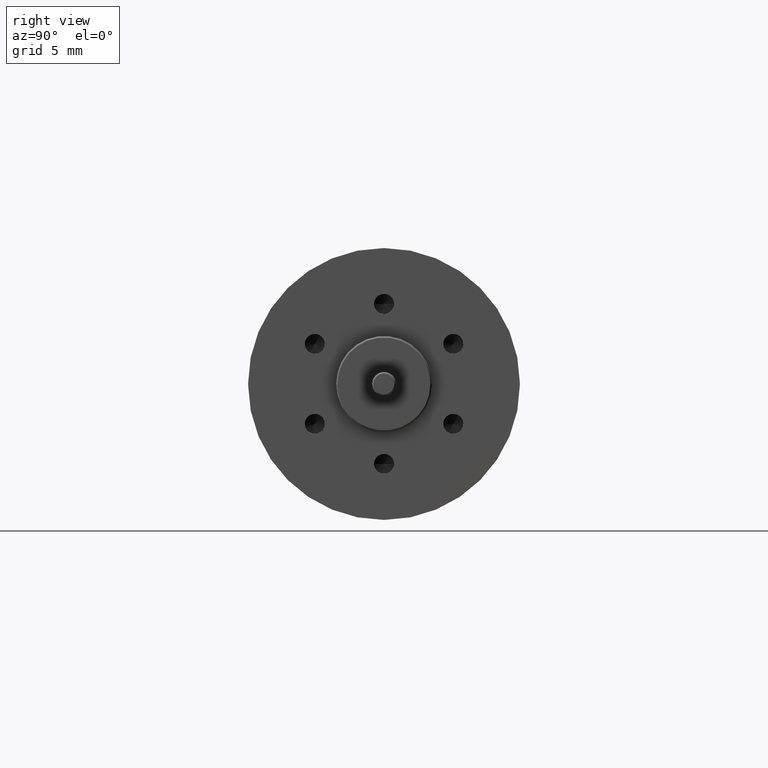
[diagram: clean part render]
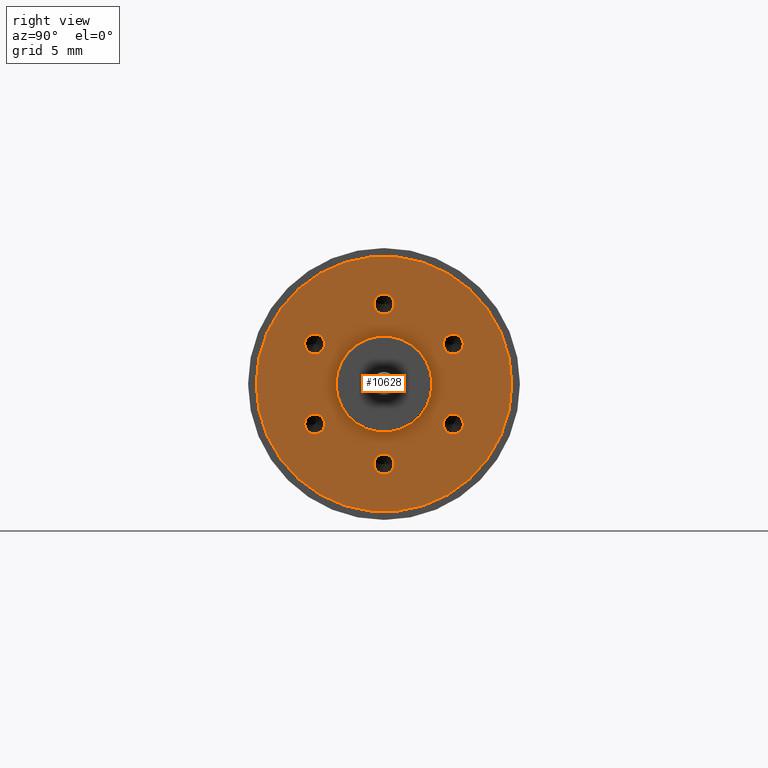
[diagram: same view with one face highlighted and labeled with its STEP entity id]
A machine part, right view. The second image highlights one B-rep face of the part: STEP entity #10628.
In plain terms, the highlighted planar face has unit normal (-1, 0, 0).
Its self-contained STEP definition (entity closure, byte-faithful):
#3560=CARTESIAN_POINT('',(0.E0,0.E0,0.E0));
#3561=DIRECTION('',(-1.E0,0.E0,0.E0));
#3562=DIRECTION('',(0.E0,1.E0,0.E0));
#3563=AXIS2_PLACEMENT_3D('',#3560,#3561,#3562);
#3569=CARTESIAN_POINT('',(0.E0,0.E0,0.E0));
#3570=DIRECTION('',(1.E0,0.E0,0.E0));
#3571=DIRECTION('',(0.E0,1.E0,0.E0));
#3572=AXIS2_PLACEMENT_3D('',#3569,#3570,#3571);
#3578=CARTESIAN_POINT('',(0.E0,0.E0,0.E0));
#3579=DIRECTION('',(-1.E0,0.E0,0.E0));
#3580=DIRECTION('',(0.E0,1.E0,0.E0));
#3581=AXIS2_PLACEMENT_3D('',#3578,#3579,#3580);
#3583=CARTESIAN_POINT('',(0.E0,0.E0,0.E0));
#3584=DIRECTION('',(1.E0,0.E0,0.E0));
#3585=DIRECTION('',(0.E0,1.E0,0.E0));
#3586=AXIS2_PLACEMENT_3D('',#3583,#3584,#3585);
#3588=CARTESIAN_POINT('',(0.E0,0.E0,5.E0));
#3589=DIRECTION('',(1.E0,0.E0,0.E0));
#3590=DIRECTION('',(0.E0,-1.E0,0.E0));
#3591=AXIS2_PLACEMENT_3D('',#3588,#3589,#3590);
#3593=CARTESIAN_POINT('',(0.E0,0.E0,5.E0));
#3594=DIRECTION('',(1.E0,0.E0,0.E0));
#3595=DIRECTION('',(0.E0,1.E0,0.E0));
#3596=AXIS2_PLACEMENT_3D('',#3593,#3594,#3595);
#3598=CARTESIAN_POINT('',(0.E0,4.330127018922E0,2.5E0));
#3599=DIRECTION('',(1.E0,0.E0,0.E0));
#3600=DIRECTION('',(0.E0,-5.E-1,8.660254037844E-1));
#3601=AXIS2_PLACEMENT_3D('',#3598,#3599,#3600);
#3603=CARTESIAN_POINT('',(0.E0,4.330127018922E0,2.5E0));
#3604=DIRECTION('',(1.E0,0.E0,0.E0));
#3605=DIRECTION('',(0.E0,5.E-1,-8.660254037844E-1));
#3606=AXIS2_PLACEMENT_3D('',#3603,#3604,#3605);
#3608=CARTESIAN_POINT('',(0.E0,4.330127018922E0,-2.5E0));
#3609=DIRECTION('',(1.E0,0.E0,0.E0));
#3610=DIRECTION('',(0.E0,5.E-1,8.660254037844E-1));
#3611=AXIS2_PLACEMENT_3D('',#3608,#3609,#3610);
#3613=CARTESIAN_POINT('',(0.E0,4.330127018922E0,-2.5E0));
#3614=DIRECTION('',(1.E0,0.E0,0.E0));
#3615=DIRECTION('',(0.E0,-5.E-1,-8.660254037844E-1));
#3616=AXIS2_PLACEMENT_3D('',#3613,#3614,#3615);
#3618=CARTESIAN_POINT('',(0.E0,0.E0,-5.E0));
#3619=DIRECTION('',(1.E0,0.E0,0.E0));
#3620=DIRECTION('',(0.E0,1.E0,0.E0));
#3621=AXIS2_PLACEMENT_3D('',#3618,#3619,#3620);
#3623=CARTESIAN_POINT('',(0.E0,0.E0,-5.E0));
#3624=DIRECTION('',(1.E0,0.E0,0.E0));
#3625=DIRECTION('',(0.E0,-1.E0,0.E0));
#3626=AXIS2_PLACEMENT_3D('',#3623,#3624,#3625);
#3628=CARTESIAN_POINT('',(0.E0,-4.330127018922E0,-2.5E0));
#3629=DIRECTION('',(1.E0,0.E0,0.E0));
#3630=DIRECTION('',(0.E0,5.E-1,-8.660254037844E-1));
#3631=AXIS2_PLACEMENT_3D('',#3628,#3629,#3630);
#3633=CARTESIAN_POINT('',(0.E0,-4.330127018922E0,-2.5E0));
#3634=DIRECTION('',(1.E0,0.E0,0.E0));
#3635=DIRECTION('',(0.E0,-5.E-1,8.660254037844E-1));
#3636=AXIS2_PLACEMENT_3D('',#3633,#3634,#3635);
#3638=CARTESIAN_POINT('',(0.E0,-4.330127018922E0,2.5E0));
#3639=DIRECTION('',(1.E0,0.E0,0.E0));
#3640=DIRECTION('',(0.E0,-5.E-1,-8.660254037844E-1));
#3641=AXIS2_PLACEMENT_3D('',#3638,#3639,#3640);
#3643=CARTESIAN_POINT('',(0.E0,-4.330127018922E0,2.5E0));
#3644=DIRECTION('',(1.E0,0.E0,0.E0));
#3645=DIRECTION('',(0.E0,5.E-1,8.660254037844E-1));
#3646=AXIS2_PLACEMENT_3D('',#3643,#3644,#3645);
#5356=CARTESIAN_POINT('',(0.E0,7.9925E0,0.E0));
#5358=VERTEX_POINT('',#5356);
#5360=CARTESIAN_POINT('',(0.E0,-7.9925E0,0.E0));
#5362=VERTEX_POINT('',#5360);
#5376=CARTESIAN_POINT('',(0.E0,3.E0,0.E0));
#5377=CARTESIAN_POINT('',(0.E0,-3.E0,0.E0));
#5378=VERTEX_POINT('',#5376);
#5379=VERTEX_POINT('',#5377);
#5386=CARTESIAN_POINT('',(0.E0,-6.25E-1,5.E0));
#5387=CARTESIAN_POINT('',(0.E0,6.25E-1,5.E0));
#5388=VERTEX_POINT('',#5386);
#5389=VERTEX_POINT('',#5387);
#5396=CARTESIAN_POINT('',(0.E0,4.017627018922E0,3.041265877365E0));
#5397=CARTESIAN_POINT('',(0.E0,4.642627018922E0,1.958734122635E0));
#5398=VERTEX_POINT('',#5396);
#5399=VERTEX_POINT('',#5397);
#5406=CARTESIAN_POINT('',(0.E0,4.642627018922E0,-1.958734122635E0));
#5407=CARTESIAN_POINT('',(0.E0,4.017627018922E0,-3.041265877365E0));
#5408=VERTEX_POINT('',#5406);
#5409=VERTEX_POINT('',#5407);
#5416=CARTESIAN_POINT('',(0.E0,6.25E-1,-5.E0));
#5417=CARTESIAN_POINT('',(0.E0,-6.25E-1,-5.E0));
#5418=VERTEX_POINT('',#5416);
#5419=VERTEX_POINT('',#5417);
#5426=CARTESIAN_POINT('',(0.E0,-4.017627018922E0,-3.041265877365E0));
#5427=CARTESIAN_POINT('',(0.E0,-4.642627018922E0,-1.958734122635E0));
#5428=VERTEX_POINT('',#5426);
#5429=VERTEX_POINT('',#5427);
#5436=CARTESIAN_POINT('',(0.E0,-4.642627018922E0,1.958734122635E0));
#5437=CARTESIAN_POINT('',(0.E0,-4.017627018922E0,3.041265877365E0));
#5438=VERTEX_POINT('',#5436);
#5439=VERTEX_POINT('',#5437);
#10577=CARTESIAN_POINT('',(0.E0,0.E0,0.E0));
#10578=DIRECTION('',(-1.E0,0.E0,0.E0));
#10579=DIRECTION('',(0.E0,1.E0,0.E0));
#10580=AXIS2_PLACEMENT_3D('',#10577,#10578,#10579);
#10581=PLANE('',#10580);
#10582=ORIENTED_EDGE('',*,*,#10570,.F.);
#10583=ORIENTED_EDGE('',*,*,#10559,.T.);
#10584=EDGE_LOOP('',(#10582,#10583));
#10585=FACE_OUTER_BOUND('',#10584,.F.);
#10587=ORIENTED_EDGE('',*,*,#10586,.F.);
#10589=ORIENTED_EDGE('',*,*,#10588,.T.);
#10590=EDGE_LOOP('',(#10587,#10589));
#10591=FACE_BOUND('',#10590,.F.);
#10593=ORIENTED_EDGE('',*,*,#10592,.T.);
#10595=ORIENTED_EDGE('',*,*,#10594,.T.);
#10596=EDGE_LOOP('',(#10593,#10595));
#10597=FACE_BOUND('',#10596,.F.);
#10599=ORIENTED_EDGE('',*,*,#10598,.T.);
#10601=ORIENTED_EDGE('',*,*,#10600,.T.);
#10602=EDGE_LOOP('',(#10599,#10601));
#10603=FACE_BOUND('',#10602,.F.);
#10605=ORIENTED_EDGE('',*,*,#10604,.T.);
#10607=ORIENTED_EDGE('',*,*,#10606,.T.);
#10608=EDGE_LOOP('',(#10605,#10607));
#10609=FACE_BOUND('',#10608,.F.);
#10611=ORIENTED_EDGE('',*,*,#10610,.T.);
#10613=ORIENTED_EDGE('',*,*,#10612,.T.);
#10614=EDGE_LOOP('',(#10611,#10613));
#10615=FACE_BOUND('',#10614,.F.);
#10617=ORIENTED_EDGE('',*,*,#10616,.T.);
#10619=ORIENTED_EDGE('',*,*,#10618,.T.);
#10620=EDGE_LOOP('',(#10617,#10619));
#10621=FACE_BOUND('',#10620,.F.);
#10623=ORIENTED_EDGE('',*,*,#10622,.T.);
#10625=ORIENTED_EDGE('',*,*,#10624,.T.);
#10626=EDGE_LOOP('',(#10623,#10625));
#10627=FACE_BOUND('',#10626,.F.);
#10628=ADVANCED_FACE('',(#10585,#10591,#10597,#10603,#10609,#10615,#10621,
#10627),#10581,.F.);
#3564=CIRCLE('',#3563,7.9925E0);
#3573=CIRCLE('',#3572,7.9925E0);
#3582=CIRCLE('',#3581,3.E0);
#3587=CIRCLE('',#3586,3.E0);
#3592=CIRCLE('',#3591,6.25E-1);
#3597=CIRCLE('',#3596,6.25E-1);
#3602=CIRCLE('',#3601,6.25E-1);
#3607=CIRCLE('',#3606,6.25E-1);
#3612=CIRCLE('',#3611,6.25E-1);
#3617=CIRCLE('',#3616,6.25E-1);
#3622=CIRCLE('',#3621,6.25E-1);
#3627=CIRCLE('',#3626,6.25E-1);
#3632=CIRCLE('',#3631,6.25E-1);
#3637=CIRCLE('',#3636,6.25E-1);
#3642=CIRCLE('',#3641,6.25E-1);
#3647=CIRCLE('',#3646,6.25E-1);
#10559=EDGE_CURVE('',#5358,#5362,#3564,.T.);
#10570=EDGE_CURVE('',#5358,#5362,#3573,.T.);
#10586=EDGE_CURVE('',#5378,#5379,#3582,.T.);
#10588=EDGE_CURVE('',#5378,#5379,#3587,.T.);
#10592=EDGE_CURVE('',#5388,#5389,#3592,.T.);
#10594=EDGE_CURVE('',#5389,#5388,#3597,.T.);
#10598=EDGE_CURVE('',#5398,#5399,#3602,.T.);
#10600=EDGE_CURVE('',#5399,#5398,#3607,.T.);
#10604=EDGE_CURVE('',#5408,#5409,#3612,.T.);
#10606=EDGE_CURVE('',#5409,#5408,#3617,.T.);
#10610=EDGE_CURVE('',#5418,#5419,#3622,.T.);
#10612=EDGE_CURVE('',#5419,#5418,#3627,.T.);
#10616=EDGE_CURVE('',#5428,#5429,#3632,.T.);
#10618=EDGE_CURVE('',#5429,#5428,#3637,.T.);
#10622=EDGE_CURVE('',#5438,#5439,#3642,.T.);
#10624=EDGE_CURVE('',#5439,#5438,#3647,.T.);